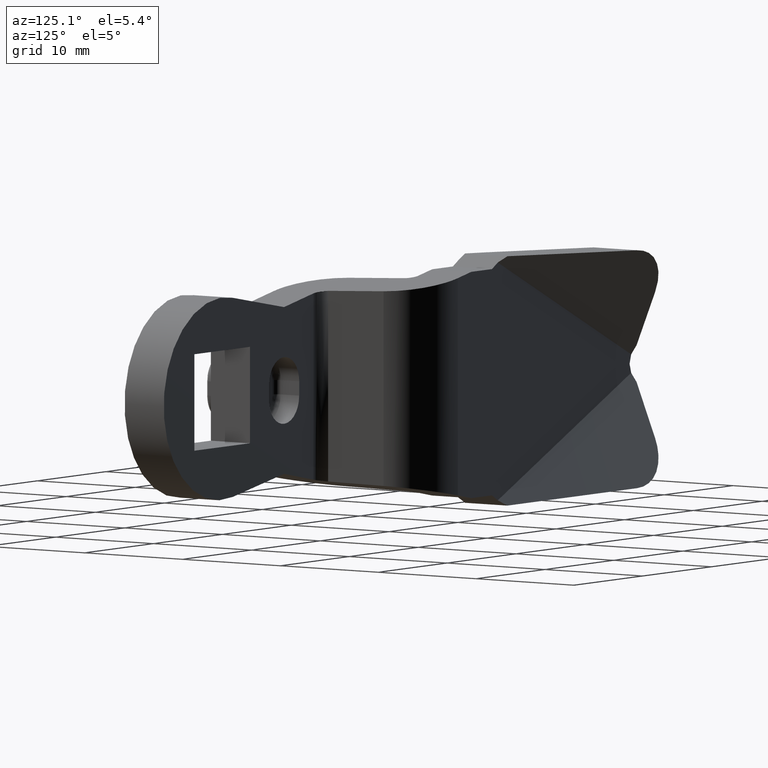
[diagram: clean part render]
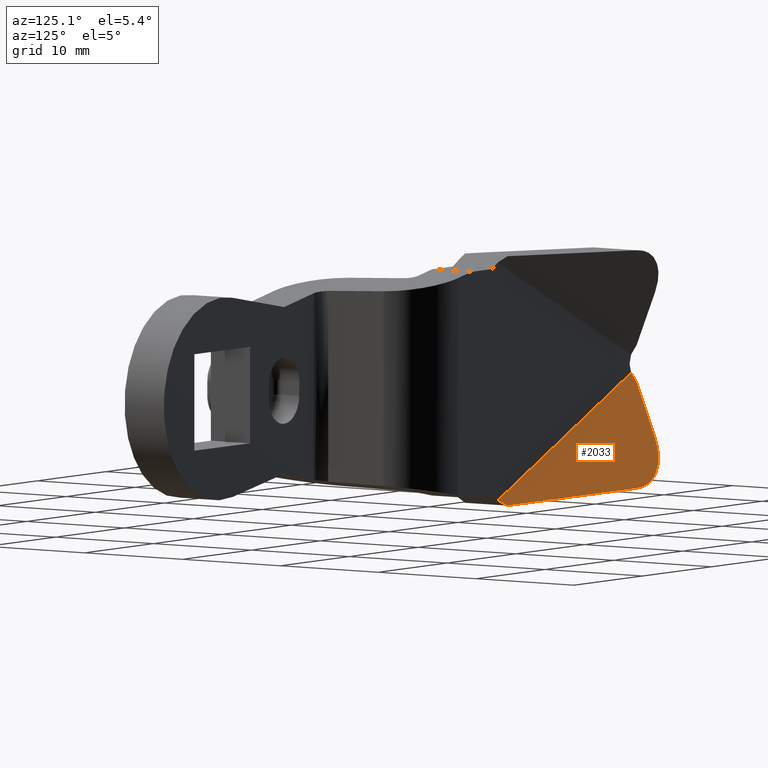
[diagram: same view with one face highlighted and labeled with its STEP entity id]
A machine part, auxiliary view. The second image highlights one B-rep face of the part: STEP entity #2033.
In plain terms, the highlighted face is a freeform B-spline surface patch.
Its self-contained STEP definition (entity closure, byte-faithful):
#1331=CARTESIAN_POINT('',(-45.460283177382500,0.392417751755757,-1.547154255354785));
#1332=VERTEX_POINT('',#1331);
#1345=CARTESIAN_POINT('',(-45.230142657383603,3.642919E-014,-0.773577127679235));
#1346=VERTEX_POINT('',#1345);
#1352=CARTESIAN_POINT('',(-45.230142657383603,3.642919E-014,-0.773577127679235));
#1353=CARTESIAN_POINT('',(-45.460283177382500,0.392417751755757,-1.547154255354785));
#1354=QUASI_UNIFORM_CURVE('',1,(#1352,#1353),.UNSPECIFIED.,.F.,.U.);
#1355=EDGE_CURVE('',#1346,#1332,#1354,.T.);
#1391=CARTESIAN_POINT('',(-45.302375168507403,2.394779060617760,-6.127238442916410));
#1392=VERTEX_POINT('',#1391);
#1398=CARTESIAN_POINT('',(-41.435250388168953,3.294008147242960,-9.987282596007720));
#1399=VERTEX_POINT('',#1398);
#1400=CARTESIAN_POINT('',(-41.435250388168953,3.294008147242960,-9.987282596007720));
#1401=CARTESIAN_POINT('',(-45.173499128936065,4.028998864369140,-9.865257275534708));
#1402=CARTESIAN_POINT('',(-45.302375168507403,2.394779060617760,-6.127238442916410));
#1410=(BOUNDED_CURVE()B_SPLINE_CURVE(2,(#1400,#1401,#1402),.UNSPECIFIED.,.F.,.U.)CURVE()GEOMETRIC_REPRESENTATION_ITEM()QUASI_UNIFORM_CURVE()RATIONAL_B_SPLINE_CURVE((1.0,0.730425871811952,1.0))REPRESENTATION_ITEM(''));
#1411=EDGE_CURVE('',#1399,#1392,#1410,.T.);
#1426=CARTESIAN_POINT('',(-26.677422310747101,0.392417751789653,-10.469013167017639));
#1427=VERTEX_POINT('',#1426);
#1440=CARTESIAN_POINT('',(-41.435250388168953,3.294008147242960,-9.987282596007720));
#1441=CARTESIAN_POINT('',(-26.677422310747101,0.392417751789653,-10.469013167017639));
#1442=QUASI_UNIFORM_CURVE('',1,(#1440,#1441),.UNSPECIFIED.,.F.,.U.);
#1443=EDGE_CURVE('',#1399,#1427,#1442,.T.);
#1939=CARTESIAN_POINT('',(-25.838711749085700,6.071532E-014,-9.984506809118408));
#1940=VERTEX_POINT('',#1939);
#1941=CARTESIAN_POINT('',(-26.677422310747101,0.392417751789653,-10.469013167017639));
#1942=CARTESIAN_POINT('',(-25.838711749085700,6.071532E-014,-9.984506809118408));
#1943=QUASI_UNIFORM_CURVE('',1,(#1941,#1942),.UNSPECIFIED.,.F.,.U.);
#1944=EDGE_CURVE('',#1427,#1940,#1943,.T.);
#1985=CARTESIAN_POINT('',(-45.460283177382500,0.392417751755757,-1.547154255354785));
#1986=CARTESIAN_POINT('',(-45.302375168507403,2.394779060617760,-6.127238442916410));
#1987=QUASI_UNIFORM_CURVE('',1,(#1985,#1986),.UNSPECIFIED.,.F.,.U.);
#1988=EDGE_CURVE('',#1332,#1392,#1987,.T.);
#2016=CARTESIAN_POINT('',(-46.086986019887902,4.393314878636811,-10.251019266548481));
#2017=CARTESIAN_POINT('',(-24.825790210209409,0.288139297787991,-11.113924134802900));
#2018=CARTESIAN_POINT('',(-46.520834956565537,0.048075111624792,-0.268661643080842));
#2019=CARTESIAN_POINT('',(-25.259639146887050,-4.057100469224027,-1.131566511335260));
#2020=B_SPLINE_SURFACE_WITH_KNOTS('',1,1,((#2016,#2018),(#2017,#2019)),.UNSPECIFIED.,.F.,.F.,.U.,(2,2),(2,2),(0.0,21.671075622099259),(0.0,10.895723805947060),.UNSPECIFIED.);
#2021=ORIENTED_EDGE('',*,*,#1355,.F.);
#2022=CARTESIAN_POINT('',(-25.838711749085700,6.071532E-014,-9.984506809118408));
#2023=CARTESIAN_POINT('',(-45.230142657383603,3.642919E-014,-0.773577127679235));
#2024=QUASI_UNIFORM_CURVE('',1,(#2022,#2023),.UNSPECIFIED.,.F.,.U.);
#2025=EDGE_CURVE('',#1940,#1346,#2024,.T.);
#2026=ORIENTED_EDGE('',*,*,#2025,.F.);
#2027=ORIENTED_EDGE('',*,*,#1944,.F.);
#2028=ORIENTED_EDGE('',*,*,#1443,.F.);
#2029=ORIENTED_EDGE('',*,*,#1411,.T.);
#2030=ORIENTED_EDGE('',*,*,#1988,.F.);
#2031=EDGE_LOOP('',(#2021,#2026,#2027,#2028,#2029,#2030));
#2032=FACE_OUTER_BOUND('',#2031,.T.);
#2033=ADVANCED_FACE('',(#2032),#2020,.F.);